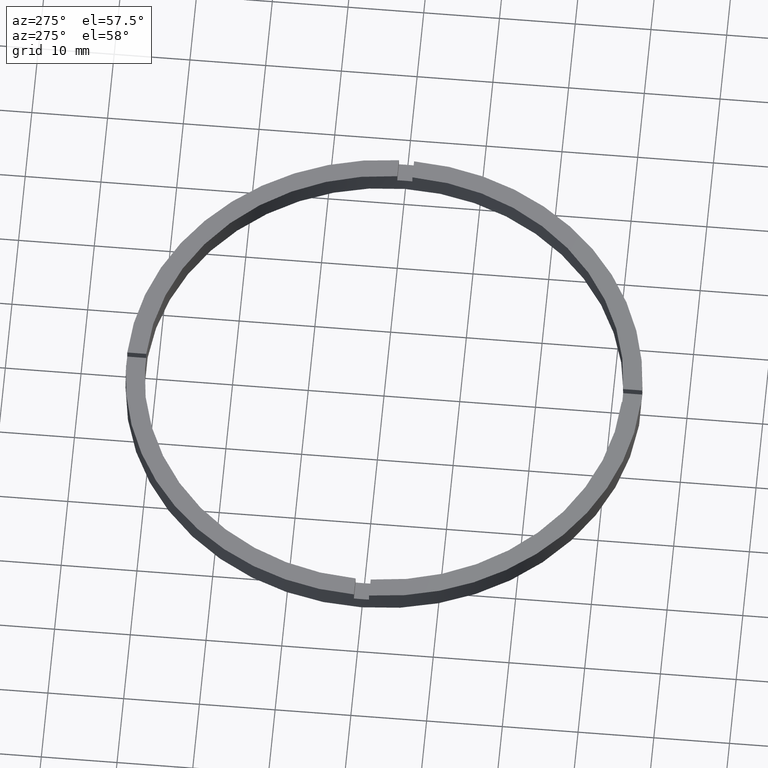
[diagram: clean part render]
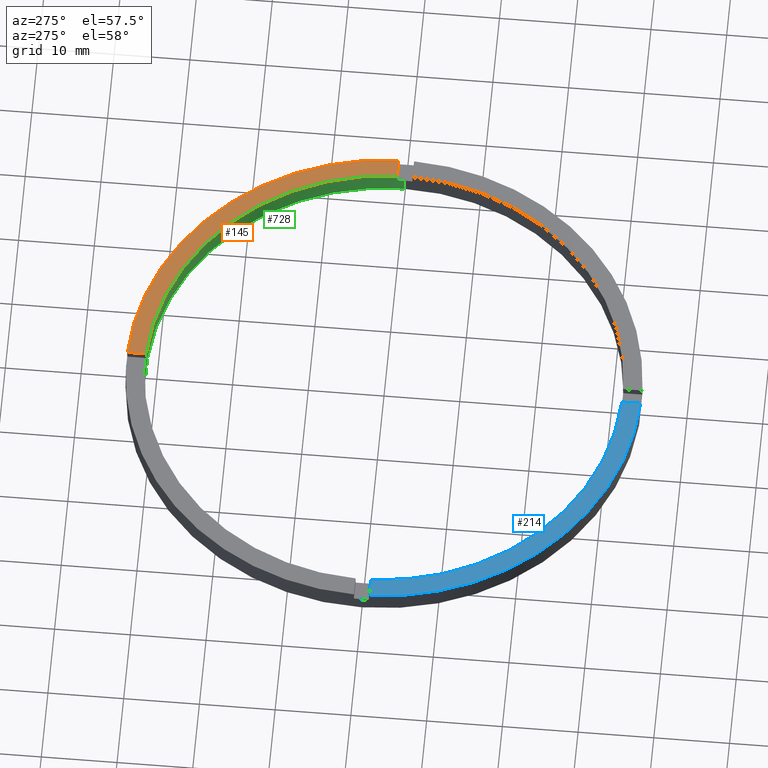
[diagram: same view with three faces highlighted in distinct colors, each labeled with its STEP entity id]
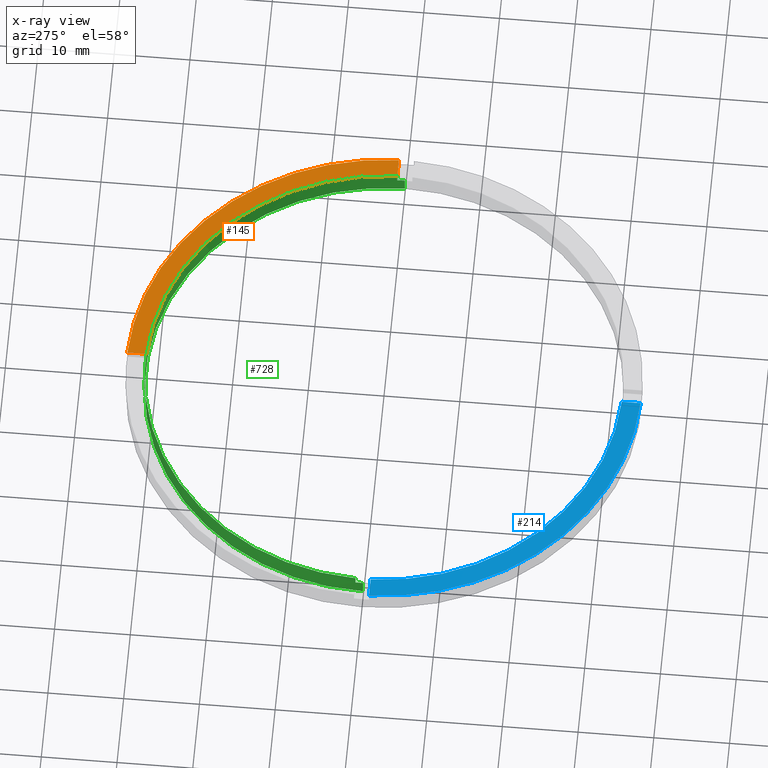
[diagram: x-ray of the same camera — body ghosted, the three highlighted faces saturated]
A machine part, auxiliary view with three faces highlighted in distinct colors.
The next image is the same camera in x-ray (body ghosted, the three faces saturated) — at least one of them is partly hidden behind the body in this view.
Their STEP definitions:

[orange] entity #145 — the highlighted planar face has unit normal (0, 0, 1).
#3 = CARTESIAN_POINT ( 'NONE',  ( 33.98529093593285921, 0.9999999999998419042, 3.000000000000000000 ) ) ;
#31 = CARTESIAN_POINT ( 'NONE',  ( 0.000000000000000000, 0.000000000000000000, 3.000000000000000000 ) ) ;
#42 = VECTOR ( 'NONE', #691, 1000.000000000000000 ) ;
#65 = ORIENTED_EDGE ( 'NONE', *, *, #219, .F. ) ;
#78 = ORIENTED_EDGE ( 'NONE', *, *, #126, .F. ) ;
#84 = AXIS2_PLACEMENT_3D ( 'NONE', #399, #401, #560 ) ;
#96 = VERTEX_POINT ( 'NONE', #724 ) ;
#126 = EDGE_CURVE ( 'NONE', #629, #338, #743, .T. ) ;
#145 = ADVANCED_FACE ( 'NONE', ( #505 ), #468, .T. ) ;
#219 = EDGE_CURVE ( 'NONE', #338, #96, #758, .T. ) ;
#225 = CARTESIAN_POINT ( 'NONE',  ( 0.000000000000000000, 0.000000000000000000, 3.000000000000000000 ) ) ;
#255 = ORIENTED_EDGE ( 'NONE', *, *, #602, .F. ) ;
#262 = VERTEX_POINT ( 'NONE', #488 ) ;
#294 = AXIS2_PLACEMENT_3D ( 'NONE', #225, #480, #472 ) ;
#301 = CARTESIAN_POINT ( 'NONE',  ( 0.9999999999999751310, 24.00000000000000000, 3.000000000000000000 ) ) ;
#307 = CIRCLE ( 'NONE', #84, 34.00000000000000000 ) ;
#314 = LINE ( 'NONE', #301, #42 ) ;
#318 = CARTESIAN_POINT ( 'NONE',  ( 31.48412298286233479, 0.9999999999998416822, 3.000000000000000000 ) ) ;
#332 = DIRECTION ( 'NONE',  ( -1.000000000000000000, -6.505213034913025371E-17, -0.000000000000000000 ) ) ;
#338 = VERTEX_POINT ( 'NONE', #318 ) ;
#350 = ORIENTED_EDGE ( 'NONE', *, *, #552, .T. ) ;
#399 = CARTESIAN_POINT ( 'NONE',  ( 0.000000000000000000, 0.000000000000000000, 3.000000000000000000 ) ) ;
#401 = DIRECTION ( 'NONE',  ( 0.000000000000000000, 0.000000000000000000, 1.000000000000000000 ) ) ;
#463 = DIRECTION ( 'NONE',  ( 0.000000000000000000, 0.000000000000000000, 1.000000000000000000 ) ) ;
#468 = PLANE ( 'NONE',  #749 ) ;
#472 = DIRECTION ( 'NONE',  ( 1.000000000000000000, 0.000000000000000000, 0.000000000000000000 ) ) ;
#480 = DIRECTION ( 'NONE',  ( 0.000000000000000000, 0.000000000000000000, 1.000000000000000000 ) ) ;
#488 = CARTESIAN_POINT ( 'NONE',  ( 0.9999999999999751310, 33.98529093593285921, 3.000000000000000000 ) ) ;
#499 = VECTOR ( 'NONE', #332, 1000.000000000000000 ) ;
#505 = FACE_OUTER_BOUND ( 'NONE', #592, .T. ) ;
#538 = DIRECTION ( 'NONE',  ( 1.000000000000000000, 0.000000000000000000, -0.000000000000000000 ) ) ;
#552 = EDGE_CURVE ( 'NONE', #629, #262, #307, .T. ) ;
#560 = DIRECTION ( 'NONE',  ( 1.000000000000000000, 0.000000000000000000, 0.000000000000000000 ) ) ;
#592 = EDGE_LOOP ( 'NONE', ( #255, #65, #78, #350 ) ) ;
#602 = EDGE_CURVE ( 'NONE', #96, #262, #314, .T. ) ;
#629 = VERTEX_POINT ( 'NONE', #3 ) ;
#691 = DIRECTION ( 'NONE',  ( 0.000000000000000000, 1.000000000000000000, 0.000000000000000000 ) ) ;
#724 = CARTESIAN_POINT ( 'NONE',  ( 0.9999999999999751310, 31.48412298286233124, 3.000000000000000000 ) ) ;
#743 = LINE ( 'NONE', #775, #499 ) ;
#749 = AXIS2_PLACEMENT_3D ( 'NONE', #31, #463, #538 ) ;
#758 = CIRCLE ( 'NONE', #294, 31.50000000000000000 ) ;
#775 = CARTESIAN_POINT ( 'NONE',  ( 23.99999999999999289, 0.9999999999998412381, 3.000000000000000000 ) ) ;

[blue] entity #214 — the highlighted planar face has unit normal (0, 0, 1).
#2 = AXIS2_PLACEMENT_3D ( 'NONE', #717, #768, #128 ) ;
#10 = ORIENTED_EDGE ( 'NONE', *, *, #11, .T. ) ;
#11 = EDGE_CURVE ( 'NONE', #246, #400, #643, .T. ) ;
#44 = CARTESIAN_POINT ( 'NONE',  ( -31.48412298286233124, -1.000000000000025757, 3.000000000000000000 ) ) ;
#53 = CIRCLE ( 'NONE', #699, 31.50000000000000000 ) ;
#56 = CARTESIAN_POINT ( 'NONE',  ( 0.000000000000000000, 0.000000000000000000, 3.000000000000000000 ) ) ;
#60 = VECTOR ( 'NONE', #489, 1000.000000000000000 ) ;
#61 = CARTESIAN_POINT ( 'NONE',  ( -24.00000000000018829, -1.000000000000024425, 3.000000000000000000 ) ) ;
#100 = VERTEX_POINT ( 'NONE', #672 ) ;
#117 = VERTEX_POINT ( 'NONE', #44 ) ;
#128 = DIRECTION ( 'NONE',  ( 1.000000000000000000, 0.000000000000000000, -0.000000000000000000 ) ) ;
#146 = DIRECTION ( 'NONE',  ( 1.000000000000000000, 1.951563910473907735E-16, -0.000000000000000000 ) ) ;
#156 = ORIENTED_EDGE ( 'NONE', *, *, #501, .F. ) ;
#159 = AXIS2_PLACEMENT_3D ( 'NONE', #323, #379, #270 ) ;
#188 = DIRECTION ( 'NONE',  ( 0.000000000000000000, 0.000000000000000000, 1.000000000000000000 ) ) ;
#214 = ADVANCED_FACE ( 'NONE', ( #502 ), #346, .T. ) ;
#246 = VERTEX_POINT ( 'NONE', #731 ) ;
#247 = CARTESIAN_POINT ( 'NONE',  ( -1.000000000000160760, -33.98529093593285211, 3.000000000000000000 ) ) ;
#256 = EDGE_CURVE ( 'NONE', #246, #117, #483, .T. ) ;
#257 = ORIENTED_EDGE ( 'NONE', *, *, #733, .F. ) ;
#269 = ORIENTED_EDGE ( 'NONE', *, *, #256, .F. ) ;
#270 = DIRECTION ( 'NONE',  ( 1.000000000000000000, 0.000000000000000000, 0.000000000000000000 ) ) ;
#303 = DIRECTION ( 'NONE',  ( 1.000000000000000000, 0.000000000000000000, 0.000000000000000000 ) ) ;
#323 = CARTESIAN_POINT ( 'NONE',  ( 0.000000000000000000, 0.000000000000000000, 3.000000000000000000 ) ) ;
#328 = LINE ( 'NONE', #681, #60 ) ;
#346 = PLANE ( 'NONE',  #2 ) ;
#379 = DIRECTION ( 'NONE',  ( 0.000000000000000000, 0.000000000000000000, 1.000000000000000000 ) ) ;
#400 = VERTEX_POINT ( 'NONE', #247 ) ;
#483 = LINE ( 'NONE', #61, #742 ) ;
#489 = DIRECTION ( 'NONE',  ( 1.301042606982605074E-16, -1.000000000000000000, 0.000000000000000000 ) ) ;
#501 = EDGE_CURVE ( 'NONE', #100, #400, #328, .T. ) ;
#502 = FACE_OUTER_BOUND ( 'NONE', #651, .T. ) ;
#643 = CIRCLE ( 'NONE', #159, 34.00000000000000000 ) ;
#651 = EDGE_LOOP ( 'NONE', ( #156, #257, #269, #10 ) ) ;
#672 = CARTESIAN_POINT ( 'NONE',  ( -1.000000000000160982, -31.48412298286232414, 3.000000000000000000 ) ) ;
#681 = CARTESIAN_POINT ( 'NONE',  ( -1.000000000000162093, -24.00000000000018119, 3.000000000000000000 ) ) ;
#699 = AXIS2_PLACEMENT_3D ( 'NONE', #56, #188, #303 ) ;
#717 = CARTESIAN_POINT ( 'NONE',  ( 0.000000000000000000, 0.000000000000000000, 3.000000000000000000 ) ) ;
#731 = CARTESIAN_POINT ( 'NONE',  ( -33.98529093593285211, -1.000000000000026423, 3.000000000000000000 ) ) ;
#733 = EDGE_CURVE ( 'NONE', #117, #100, #53, .T. ) ;
#742 = VECTOR ( 'NONE', #146, 1000.000000000000000 ) ;
#768 = DIRECTION ( 'NONE',  ( 0.000000000000000000, 0.000000000000000000, 1.000000000000000000 ) ) ;

[green] entity #728 — the highlighted cylindrical surface (partial cylindrical patch) has radius 31.5 mm, axis along (-0, -0, -1).
#16 = VERTEX_POINT ( 'NONE', #682 ) ;
#32 = DIRECTION ( 'NONE',  ( 1.000000000000000000, 0.000000000000000000, 0.000000000000000000 ) ) ;
#38 = EDGE_CURVE ( 'NONE', #376, #344, #93, .T. ) ;
#55 = CIRCLE ( 'NONE', #212, 31.50000000000000000 ) ;
#63 = DIRECTION ( 'NONE',  ( 0.000000000000000000, -0.000000000000000000, 1.000000000000000000 ) ) ;
#66 = VECTOR ( 'NONE', #342, 1000.000000000000000 ) ;
#74 = AXIS2_PLACEMENT_3D ( 'NONE', #425, #473, #533 ) ;
#90 = ORIENTED_EDGE ( 'NONE', *, *, #219, .T. ) ;
#93 = LINE ( 'NONE', #113, #95 ) ;
#95 = VECTOR ( 'NONE', #206, 1000.000000000000000 ) ;
#96 = VERTEX_POINT ( 'NONE', #724 ) ;
#103 = EDGE_CURVE ( 'NONE', #642, #16, #365, .T. ) ;
#113 = CARTESIAN_POINT ( 'NONE',  ( 31.50000000000000000, 3.857637417314162689E-15, 3.000000000000000000 ) ) ;
#121 = ORIENTED_EDGE ( 'NONE', *, *, #38, .F. ) ;
#130 = EDGE_CURVE ( 'NONE', #344, #271, #486, .T. ) ;
#134 = DIRECTION ( 'NONE',  ( 0.000000000000000000, 0.000000000000000000, 1.000000000000000000 ) ) ;
#137 = AXIS2_PLACEMENT_3D ( 'NONE', #718, #436, #32 ) ;
#140 = DIRECTION ( 'NONE',  ( 1.000000000000000000, 0.000000000000000000, 0.000000000000000000 ) ) ;
#164 = CARTESIAN_POINT ( 'NONE',  ( 0.000000000000000000, 0.000000000000000000, 2.000000000000000000 ) ) ;
#165 = VERTEX_POINT ( 'NONE', #174 ) ;
#174 = CARTESIAN_POINT ( 'NONE',  ( 31.48412298286233479, 0.9999999999998416822, 2.000000000000000000 ) ) ;
#183 = CIRCLE ( 'NONE', #516, 31.50000000000000000 ) ;
#198 = CARTESIAN_POINT ( 'NONE',  ( 0.9999999999999751310, 31.48412298286233124, 3.000000000000000000 ) ) ;
#204 = DIRECTION ( 'NONE',  ( 1.000000000000000000, 0.000000000000000000, 0.000000000000000000 ) ) ;
#206 = DIRECTION ( 'NONE',  ( -0.000000000000000000, -0.000000000000000000, -1.000000000000000000 ) ) ;
#212 = AXIS2_PLACEMENT_3D ( 'NONE', #240, #63, #140 ) ;
#219 = EDGE_CURVE ( 'NONE', #338, #96, #758, .T. ) ;
#221 = CARTESIAN_POINT ( 'NONE',  ( 31.48412298286233479, 0.9999999999998416822, 3.000000000000000000 ) ) ;
#225 = CARTESIAN_POINT ( 'NONE',  ( 0.000000000000000000, 0.000000000000000000, 3.000000000000000000 ) ) ;
#240 = CARTESIAN_POINT ( 'NONE',  ( 0.000000000000000000, 0.000000000000000000, 2.000000000000000000 ) ) ;
#242 = LINE ( 'NONE', #198, #244 ) ;
#244 = VECTOR ( 'NONE', #752, 1000.000000000000000 ) ;
#253 = EDGE_LOOP ( 'NONE', ( #121, #527, #352, #90, #515, #349, #431, #766, #369, #600, #764, #698 ) ) ;
#265 = EDGE_CURVE ( 'NONE', #371, #96, #242, .T. ) ;
#271 = VERTEX_POINT ( 'NONE', #446 ) ;
#272 = CARTESIAN_POINT ( 'NONE',  ( -1.000000000000024869, 31.48412298286233124, 3.000000000000000000 ) ) ;
#289 = CARTESIAN_POINT ( 'NONE',  ( -1.000000000000024869, 31.48412298286233124, 3.000000000000000000 ) ) ;
#293 = EDGE_CURVE ( 'NONE', #376, #165, #183, .T. ) ;
#294 = AXIS2_PLACEMENT_3D ( 'NONE', #225, #480, #472 ) ;
#298 = CARTESIAN_POINT ( 'NONE',  ( -31.48412298286233124, 0.9999999999999742428, 3.000000000000000000 ) ) ;
#302 = LINE ( 'NONE', #595, #309 ) ;
#308 = VECTOR ( 'NONE', #523, 1000.000000000000000 ) ;
#309 = VECTOR ( 'NONE', #580, 1000.000000000000000 ) ;
#311 = LINE ( 'NONE', #453, #569 ) ;
#313 = CYLINDRICAL_SURFACE ( 'NONE', #74, 31.50000000000000000 ) ;
#318 = CARTESIAN_POINT ( 'NONE',  ( 31.48412298286233479, 0.9999999999998416822, 3.000000000000000000 ) ) ;
#325 = CARTESIAN_POINT ( 'NONE',  ( 31.50000000000000000, 3.857637417314162689E-15, 2.000000000000000000 ) ) ;
#338 = VERTEX_POINT ( 'NONE', #318 ) ;
#342 = DIRECTION ( 'NONE',  ( -0.000000000000000000, -0.000000000000000000, -1.000000000000000000 ) ) ;
#344 = VERTEX_POINT ( 'NONE', #704 ) ;
#349 = ORIENTED_EDGE ( 'NONE', *, *, #762, .T. ) ;
#352 = ORIENTED_EDGE ( 'NONE', *, *, #720, .F. ) ;
#365 = CIRCLE ( 'NONE', #442, 31.50000000000000000 ) ;
#369 = ORIENTED_EDGE ( 'NONE', *, *, #553, .F. ) ;
#371 = VERTEX_POINT ( 'NONE', #451 ) ;
#376 = VERTEX_POINT ( 'NONE', #325 ) ;
#383 = CARTESIAN_POINT ( 'NONE',  ( -1.000000000000024869, 31.48412298286233124, 2.000000000000000000 ) ) ;
#395 = CARTESIAN_POINT ( 'NONE',  ( 0.000000000000000000, 0.000000000000000000, 2.000000000000000000 ) ) ;
#402 = CARTESIAN_POINT ( 'NONE',  ( 0.000000000000000000, 0.000000000000000000, 0.000000000000000000 ) ) ;
#425 = CARTESIAN_POINT ( 'NONE',  ( 0.000000000000000000, 0.000000000000000000, 3.000000000000000000 ) ) ;
#431 = ORIENTED_EDGE ( 'NONE', *, *, #443, .F. ) ;
#436 = DIRECTION ( 'NONE',  ( 0.000000000000000000, 0.000000000000000000, 1.000000000000000000 ) ) ;
#442 = AXIS2_PLACEMENT_3D ( 'NONE', #164, #134, #204 ) ;
#443 = EDGE_CURVE ( 'NONE', #644, #542, #710, .T. ) ;
#446 = CARTESIAN_POINT ( 'NONE',  ( -31.50000000000000000, 0.000000000000000000, 0.000000000000000000 ) ) ;
#447 = DIRECTION ( 'NONE',  ( 0.000000000000000000, 0.000000000000000000, 1.000000000000000000 ) ) ;
#451 = CARTESIAN_POINT ( 'NONE',  ( 0.9999999999999751310, 31.48412298286233124, 2.000000000000000000 ) ) ;
#453 = CARTESIAN_POINT ( 'NONE',  ( -31.48412298286233124, 0.9999999999999742428, 3.000000000000000000 ) ) ;
#472 = DIRECTION ( 'NONE',  ( 1.000000000000000000, 0.000000000000000000, 0.000000000000000000 ) ) ;
#473 = DIRECTION ( 'NONE',  ( -0.000000000000000000, -0.000000000000000000, -1.000000000000000000 ) ) ;
#474 = DIRECTION ( 'NONE',  ( 0.000000000000000000, 0.000000000000000000, 1.000000000000000000 ) ) ;
#480 = DIRECTION ( 'NONE',  ( 0.000000000000000000, 0.000000000000000000, 1.000000000000000000 ) ) ;
#486 = CIRCLE ( 'NONE', #628, 31.50000000000000000 ) ;
#515 = ORIENTED_EDGE ( 'NONE', *, *, #265, .F. ) ;
#516 = AXIS2_PLACEMENT_3D ( 'NONE', #395, #632, #741 ) ;
#523 = DIRECTION ( 'NONE',  ( -0.000000000000000000, -0.000000000000000000, -1.000000000000000000 ) ) ;
#527 = ORIENTED_EDGE ( 'NONE', *, *, #293, .T. ) ;
#533 = DIRECTION ( 'NONE',  ( -1.000000000000000000, 0.000000000000000000, 0.000000000000000000 ) ) ;
#542 = VERTEX_POINT ( 'NONE', #383 ) ;
#553 = EDGE_CURVE ( 'NONE', #642, #772, #311, .T. ) ;
#569 = VECTOR ( 'NONE', #447, 1000.000000000000000 ) ;
#573 = FACE_OUTER_BOUND ( 'NONE', #253, .T. ) ;
#576 = DIRECTION ( 'NONE',  ( 1.000000000000000000, 0.000000000000000000, 0.000000000000000000 ) ) ;
#577 = LINE ( 'NONE', #221, #308 ) ;
#580 = DIRECTION ( 'NONE',  ( -0.000000000000000000, -0.000000000000000000, -1.000000000000000000 ) ) ;
#586 = CIRCLE ( 'NONE', #137, 31.50000000000000000 ) ;
#595 = CARTESIAN_POINT ( 'NONE',  ( -31.50000000000000000, 0.000000000000000000, 3.000000000000000000 ) ) ;
#600 = ORIENTED_EDGE ( 'NONE', *, *, #103, .T. ) ;
#628 = AXIS2_PLACEMENT_3D ( 'NONE', #402, #474, #576 ) ;
#632 = DIRECTION ( 'NONE',  ( 0.000000000000000000, 0.000000000000000000, 1.000000000000000000 ) ) ;
#642 = VERTEX_POINT ( 'NONE', #726 ) ;
#644 = VERTEX_POINT ( 'NONE', #289 ) ;
#647 = EDGE_CURVE ( 'NONE', #16, #271, #302, .T. ) ;
#668 = EDGE_CURVE ( 'NONE', #644, #772, #586, .T. ) ;
#682 = CARTESIAN_POINT ( 'NONE',  ( -31.50000000000000000, 0.000000000000000000, 2.000000000000000000 ) ) ;
#698 = ORIENTED_EDGE ( 'NONE', *, *, #130, .F. ) ;
#704 = CARTESIAN_POINT ( 'NONE',  ( 31.50000000000000000, 3.857637417314162689E-15, 0.000000000000000000 ) ) ;
#710 = LINE ( 'NONE', #272, #66 ) ;
#718 = CARTESIAN_POINT ( 'NONE',  ( 0.000000000000000000, 0.000000000000000000, 3.000000000000000000 ) ) ;
#720 = EDGE_CURVE ( 'NONE', #338, #165, #577, .T. ) ;
#724 = CARTESIAN_POINT ( 'NONE',  ( 0.9999999999999751310, 31.48412298286233124, 3.000000000000000000 ) ) ;
#726 = CARTESIAN_POINT ( 'NONE',  ( -31.48412298286233124, 0.9999999999999742428, 2.000000000000000000 ) ) ;
#728 = ADVANCED_FACE ( 'NONE', ( #573 ), #313, .F. ) ;
#741 = DIRECTION ( 'NONE',  ( 1.000000000000000000, 0.000000000000000000, 0.000000000000000000 ) ) ;
#752 = DIRECTION ( 'NONE',  ( 0.000000000000000000, 0.000000000000000000, 1.000000000000000000 ) ) ;
#758 = CIRCLE ( 'NONE', #294, 31.50000000000000000 ) ;
#762 = EDGE_CURVE ( 'NONE', #371, #542, #55, .T. ) ;
#764 = ORIENTED_EDGE ( 'NONE', *, *, #647, .T. ) ;
#766 = ORIENTED_EDGE ( 'NONE', *, *, #668, .T. ) ;
#772 = VERTEX_POINT ( 'NONE', #298 ) ;